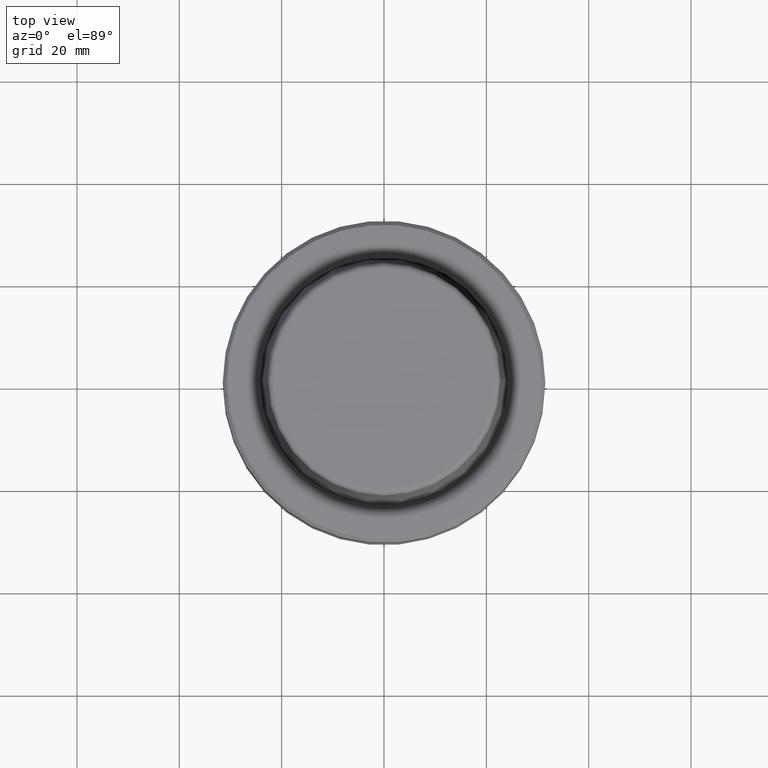
[diagram: clean part render]
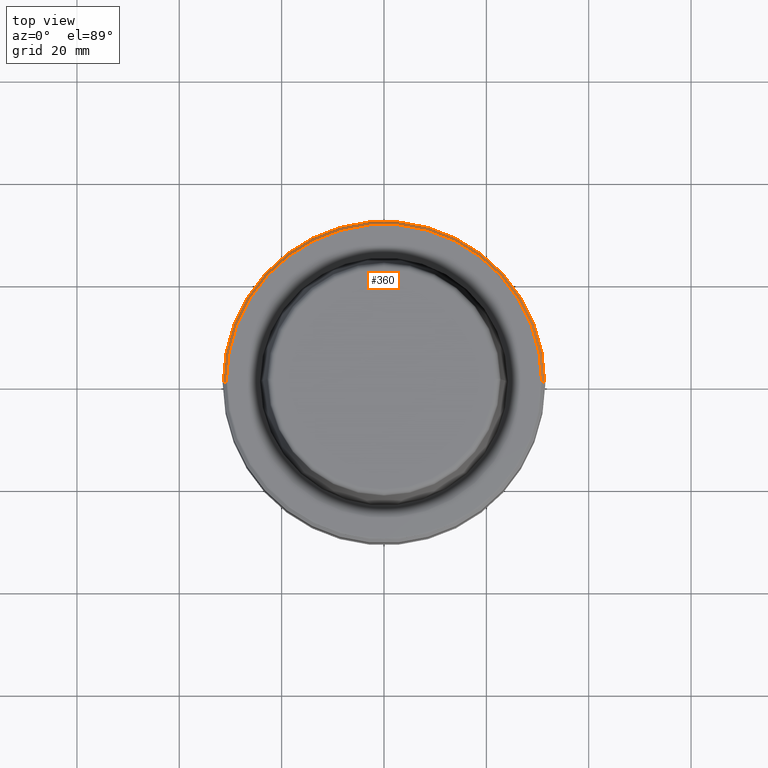
[diagram: same view with one face highlighted and labeled with its STEP entity id]
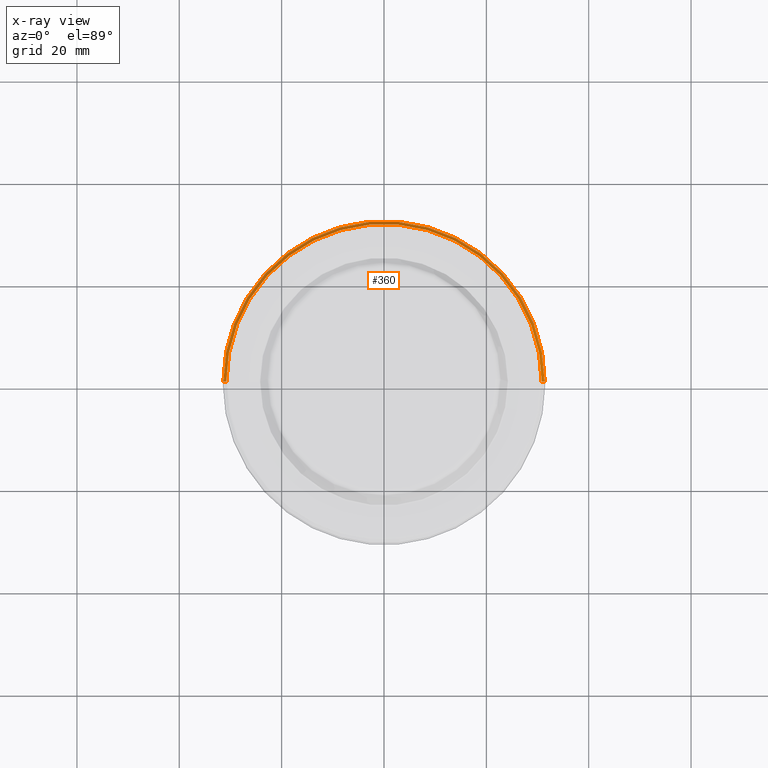
[diagram: x-ray of the same camera — body ghosted, the highlighted face saturated]
A machine part, top view. The second image highlights one B-rep face of the part: STEP entity #360.
The next image is the same camera in x-ray: the body ghosted, the highlighted face saturated — about 0% of this face is hidden behind the body in this view.
In plain terms, the highlighted conical surface has half-angle 45 deg.
Its self-contained STEP definition (entity closure, byte-faithful):
#63 = DIRECTION ( 'NONE',  ( 1.000000000000000000, 0.0000000000000000000, 0.0000000000000000000 ) ) ;
#99 = DIRECTION ( 'NONE',  ( -1.000000000000000000, 0.0000000000000000000, 0.0000000000000000000 ) ) ;
#100 = VERTEX_POINT ( 'NONE', #1233 ) ;
#114 = VECTOR ( 'NONE', #497, 1000.000000000000000 ) ;
#147 = CARTESIAN_POINT ( 'NONE',  ( 0.0000000000000000000, 0.0000000000000000000, -0.1171572875253851200 ) ) ;
#197 = CARTESIAN_POINT ( 'NONE',  ( -30.81715728752537900, 0.0000000000000000000, -0.1171572875253851200 ) ) ;
#217 = VERTEX_POINT ( 'NONE', #1047 ) ;
#295 = DIRECTION ( 'NONE',  ( -0.0000000000000000000, -0.0000000000000000000, 1.000000000000000000 ) ) ;
#297 = EDGE_CURVE ( 'NONE', #1065, #491, #1114, .T. ) ;
#360 = ADVANCED_FACE ( 'NONE', ( #575 ), #770, .T. ) ;
#379 = DIRECTION ( 'NONE',  ( 0.0000000000000000000, 0.0000000000000000000, -1.000000000000000000 ) ) ;
#491 = VERTEX_POINT ( 'NONE', #197 ) ;
#497 = DIRECTION ( 'NONE',  ( 0.7071067811865453500, 8.659560562354907000E-017, -0.7071067811865496800 ) ) ;
#516 = ORIENTED_EDGE ( 'NONE', *, *, #1205, .F. ) ;
#522 = EDGE_CURVE ( 'NONE', #1065, #100, #610, .T. ) ;
#575 = FACE_OUTER_BOUND ( 'NONE', #752, .T. ) ;
#599 = ORIENTED_EDGE ( 'NONE', *, *, #967, .T. ) ;
#610 = LINE ( 'NONE', #893, #114 ) ;
#636 = LINE ( 'NONE', #645, #889 ) ;
#645 = CARTESIAN_POINT ( 'NONE',  ( -31.38284271247461600, 0.0000000000000000000, -0.6828427124746239100 ) ) ;
#752 = EDGE_LOOP ( 'NONE', ( #946, #864, #599, #516 ) ) ;
#770 = CONICAL_SURFACE ( 'NONE', #1158, 31.38284271247461600, 0.7853981633974452800 ) ;
#773 = AXIS2_PLACEMENT_3D ( 'NONE', #147, #841, #63 ) ;
#841 = DIRECTION ( 'NONE',  ( -0.0000000000000000000, -0.0000000000000000000, 1.000000000000000000 ) ) ;
#850 = AXIS2_PLACEMENT_3D ( 'NONE', #890, #295, #989 ) ;
#864 = ORIENTED_EDGE ( 'NONE', *, *, #522, .T. ) ;
#889 = VECTOR ( 'NONE', #1217, 1000.000000000000000 ) ;
#890 = CARTESIAN_POINT ( 'NONE',  ( 0.0000000000000000000, 0.0000000000000000000, -0.6828427124746239100 ) ) ;
#893 = CARTESIAN_POINT ( 'NONE',  ( 31.38284271247461600, 3.843289787597687600E-015, -0.6828427124746239100 ) ) ;
#946 = ORIENTED_EDGE ( 'NONE', *, *, #297, .F. ) ;
#967 = EDGE_CURVE ( 'NONE', #100, #217, #1094, .T. ) ;
#989 = DIRECTION ( 'NONE',  ( 1.000000000000000000, 0.0000000000000000000, 0.0000000000000000000 ) ) ;
#1047 = CARTESIAN_POINT ( 'NONE',  ( -31.38284271247461600, 3.850463602455925200E-015, -0.6828427124746239100 ) ) ;
#1065 = VERTEX_POINT ( 'NONE', #1098 ) ;
#1094 = CIRCLE ( 'NONE', #850, 31.38284271247461600 ) ;
#1098 = CARTESIAN_POINT ( 'NONE',  ( 30.81715728752537900, 3.808651545348268500E-015, -0.1171572875253851200 ) ) ;
#1114 = CIRCLE ( 'NONE', #773, 30.81715728752537900 ) ;
#1158 = AXIS2_PLACEMENT_3D ( 'NONE', #1160, #379, #99 ) ;
#1160 = CARTESIAN_POINT ( 'NONE',  ( 0.0000000000000000000, 0.0000000000000000000, -0.6828427124746239100 ) ) ;
#1205 = EDGE_CURVE ( 'NONE', #491, #217, #636, .T. ) ;
#1217 = DIRECTION ( 'NONE',  ( -0.7071067811865453500, 0.0000000000000000000, -0.7071067811865496800 ) ) ;
#1233 = CARTESIAN_POINT ( 'NONE',  ( 31.38284271247461600, 0.0000000000000000000, -0.6828427124746239100 ) ) ;